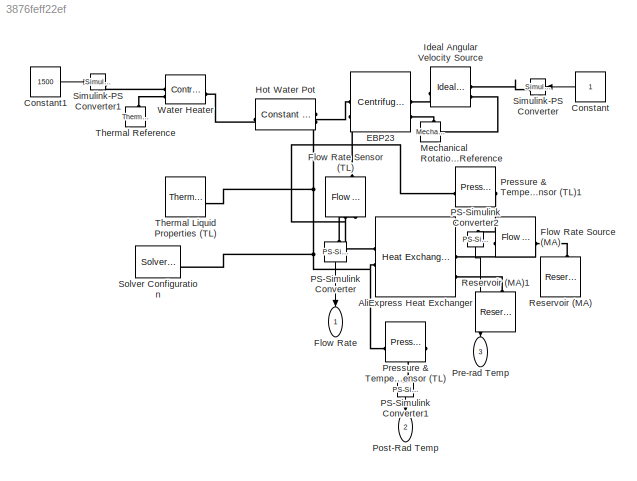
MODEL slx_3876feff22ef
KIND model
CONFIG AbsTol = auto
CONFIG EnableMultiTasking = off
CONFIG FixedStep = auto
CONFIG MaxStep = auto
CONFIG MinStep = auto
CONFIG RelTol = 1e-3
CONFIG SampleTimeConstraint = Unconstrained
CONFIG SolverName = VariableStepAuto
CONFIG StartTime = 0.0
CONFIG StopTime = 2400
BLOCK [Reference] AliExpress Heat Exchanger  REF=SimscapeFluids_lib/Heat Exchangers/Thermal Liquid -
Moist Air/Heat Exchanger
(TL-MA)
  SourceBlock = SimscapeFluids_lib/Heat Exchangers/Thermal Liquid -\nMoist Air/Heat Exchanger\n(TL-MA)
  SourceType = Heat Exchanger\n(TL-MA)
BLOCK [Constant] Constant
BLOCK [Constant] Constant1
  Value = 1500
BLOCK [Reference] EBP23  REF=SimscapeFluids_lib/Thermal Liquid/Pumps & Motors/Centrifugal Pump
(TL)
  SourceBlock = SimscapeFluids_lib/Thermal Liquid/Pumps & Motors/Centrifugal Pump\n(TL)
  SourceType = Centrifugal Pump\n(TL)
BLOCK [Outport] Flow Rate
  NameLocation = left
BLOCK [Reference] Flow Rate Sensor (TL)  REF=fl_lib/Thermal Liquid/Sensors/Flow Rate Sensor
(TL)
  NameLocation = left
  SourceBlock = fl_lib/Thermal Liquid/Sensors/Flow Rate Sensor\n(TL)
  SourceType = Flow Rate Sensor\n(TL)
BLOCK [Reference] Flow Rate Source (MA)  REF=fl_lib/Moist Air/Sources/Flow Rate Source
(MA)
  NameLocation = top
  SourceBlock = fl_lib/Moist Air/Sources/Flow Rate Source\n(MA)
  SourceType = Flow Rate Source\n(MA)
BLOCK [Reference] Hot Water Pot  REF=fl_lib/Thermal Liquid/Elements/Constant Volume
Chamber (TL)
  NameLocation = top
  SourceBlock = fl_lib/Thermal Liquid/Elements/Constant Volume\nChamber (TL)
  SourceType = Constant Volume\nChamber (TL)
BLOCK [Reference] Ideal Angular Velocity Source  REF=fl_lib/Mechanical/Mechanical Sources/Ideal Angular
Velocity Source
  SourceBlock = fl_lib/Mechanical/Mechanical Sources/Ideal Angular\nVelocity Source
  SourceType = Ideal Angular\nVelocity Source
BLOCK [Reference] Mechanical Rotational Reference  REF=fl_lib/Mechanical/Rotational Elements/Mechanical
Rotational Reference
  NameLocation = right
  SourceBlock = fl_lib/Mechanical/Rotational Elements/Mechanical\nRotational Reference
  SourceType = Mechanical\nRotational Reference
BLOCK [Reference] PS-Simulink Converter  REF=nesl_utility/PS-Simulink
Converter
  NameLocation = left
  SourceBlock = nesl_utility/PS-Simulink\nConverter
  SourceType = PS-Simulink\nConverter
BLOCK [Reference] PS-Simulink Converter1  REF=nesl_utility/PS-Simulink
Converter
  NameLocation = left
  SourceBlock = nesl_utility/PS-Simulink\nConverter
  SourceType = PS-Simulink\nConverter
BLOCK [Reference] PS-Simulink Converter2  REF=nesl_utility/PS-Simulink
Converter
  NameLocation = left
  SourceBlock = nesl_utility/PS-Simulink\nConverter
  SourceType = PS-Simulink\nConverter
BLOCK [Outport] Post-Rad Temp
  NameLocation = left
  Port = 2
BLOCK [Outport] Pre-rad Temp
  NameLocation = left
  Port = 3
BLOCK [Reference] Pressure & Temperature Sensor (TL)  REF=fl_lib/Thermal Liquid/Sensors/Pressure &
Temperature Sensor
(TL)
  SourceBlock = fl_lib/Thermal Liquid/Sensors/Pressure &\nTemperature Sensor\n(TL)
  SourceType = Pressure &\nTemperature Sensor\n(TL)
BLOCK [Reference] Pressure & Temperature Sensor (TL)1  REF=fl_lib/Thermal Liquid/Sensors/Pressure &
Temperature Sensor
(TL)
  SourceBlock = fl_lib/Thermal Liquid/Sensors/Pressure &\nTemperature Sensor\n(TL)
  SourceType = Pressure &\nTemperature Sensor\n(TL)
BLOCK [Reference] Reservoir (MA)  REF=fl_lib/Moist Air/Elements/Reservoir (MA)
  NameLocation = right
  SourceBlock = fl_lib/Moist Air/Elements/Reservoir (MA)
  SourceType = Reservoir (MA)
BLOCK [Reference] Reservoir (MA)1  REF=fl_lib/Moist Air/Elements/Reservoir (MA)
  NameLocation = right
  SourceBlock = fl_lib/Moist Air/Elements/Reservoir (MA)
  SourceType = Reservoir (MA)
BLOCK [Reference] Simulink-PS Converter  REF=nesl_utility/Simulink-PS
Converter
  SourceBlock = nesl_utility/Simulink-PS\nConverter
  SourceType = Simulink-PS\nConverter
BLOCK [Reference] Simulink-PS Converter1  REF=nesl_utility/Simulink-PS
Converter
  SourceBlock = nesl_utility/Simulink-PS\nConverter
  SourceType = Simulink-PS\nConverter
BLOCK [Reference] Solver Configuration  REF=nesl_utility/Solver
Configuration
  SourceBlock = nesl_utility/Solver\nConfiguration
  SourceType = Solver\nConfiguration
BLOCK [Reference] Thermal Liquid Properties (TL)  REF=SimscapeFluids_lib/Thermal Liquid/Utilities/Thermal Liquid
Properties (TL)
  SourceBlock = SimscapeFluids_lib/Thermal Liquid/Utilities/Thermal Liquid\nProperties (TL)
  SourceType = Thermal Liquid\nProperties (TL)
BLOCK [Reference] Thermal Reference  REF=fl_lib/Thermal/Thermal Elements/Thermal Reference
  NameLocation = right
  SourceBlock = fl_lib/Thermal/Thermal Elements/Thermal Reference
  SourceType = Thermal Reference
BLOCK [Reference] Water Heater  REF=fl_lib/Thermal/Thermal Sources/Controlled Heat Flow
Rate Source
  SourceBlock = fl_lib/Thermal/Thermal Sources/Controlled Heat Flow\nRate Source
  SourceType = Controlled Heat Flow\nRate Source
LINE Constant1:1 -> Simulink-PS Converter1:1
LINE Constant:1 -> Simulink-PS Converter:1
LINE PS-Simulink Converter1:1 -> Post-Rad Temp:1
LINE PS-Simulink Converter2:1 -> Pre-rad Temp:1
LINE PS-Simulink Converter:1 -> Flow Rate:1
PNET net1: AliExpress Heat Exchanger:LConn1 -- Flow Rate Sensor (TL):RConn1 -- Pressure & Temperature Sensor (TL)1:LConn1
PNET net2: AliExpress Heat Exchanger:LConn2 -- Hot Water Pot:LConn1 -- Pressure & Temperature Sensor (TL):LConn1 -- Solver Configuration:RConn1 -- Thermal Liquid Properties (TL):RConn1
PLINE AliExpress Heat Exchanger:RConn1 -- Flow Rate Source (MA):RConn1
PLINE AliExpress Heat Exchanger:RConn2 -- Reservoir (MA)1:LConn1
PLINE EBP23:LConn1 -- Hot Water Pot:RConn1
PLINE EBP23:LConn2 -- Flow Rate Sensor (TL):LConn1
PLINE EBP23:RConn1 -- Ideal Angular Velocity Source:LConn1
PNET net3: EBP23:RConn2 -- Ideal Angular Velocity Source:RConn2 -- Mechanical Rotational Reference:LConn1
PLINE Flow Rate Sensor (TL):RConn2 -- PS-Simulink Converter:LConn1
PLINE Flow Rate Source (MA):LConn1 -- Reservoir (MA):LConn1
PLINE Hot Water Pot:LConn2 -- Water Heater:LConn1
PLINE Ideal Angular Velocity Source:RConn1 -- Simulink-PS Converter:RConn1
PLINE PS-Simulink Converter1:LConn1 -- Pressure & Temperature Sensor (TL):RConn1
PLINE PS-Simulink Converter2:LConn1 -- Pressure & Temperature Sensor (TL)1:RConn1
PLINE Simulink-PS Converter1:RConn1 -- Water Heater:RConn1
PLINE Thermal Reference:LConn1 -- Water Heater:RConn2
note: PNET lines group multi-terminal physical nets as a canonical sorted terminal list (undirected conserving connections); 2-terminal nets keep the pairwise PLINE form
